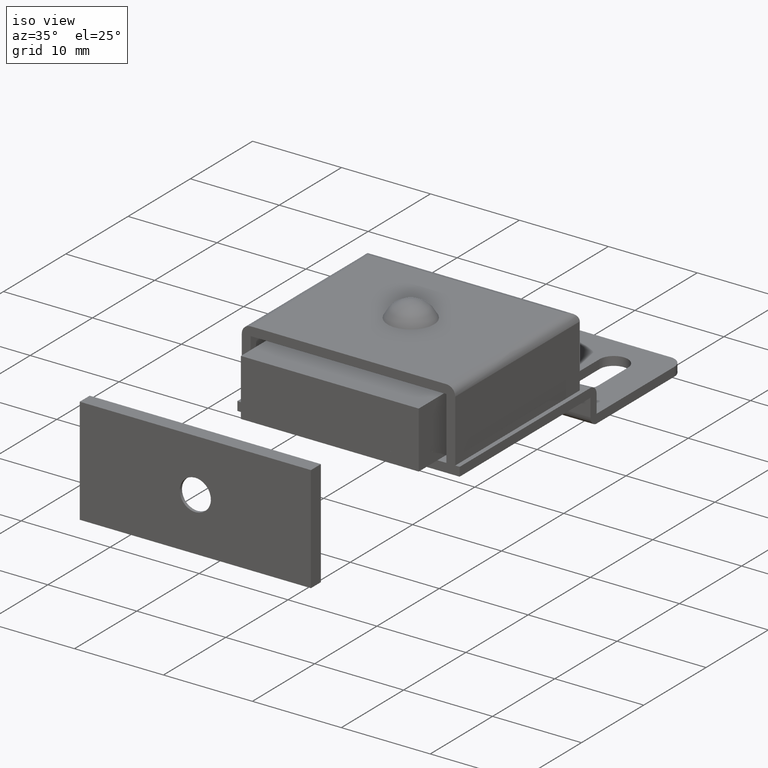
[diagram: clean part render]
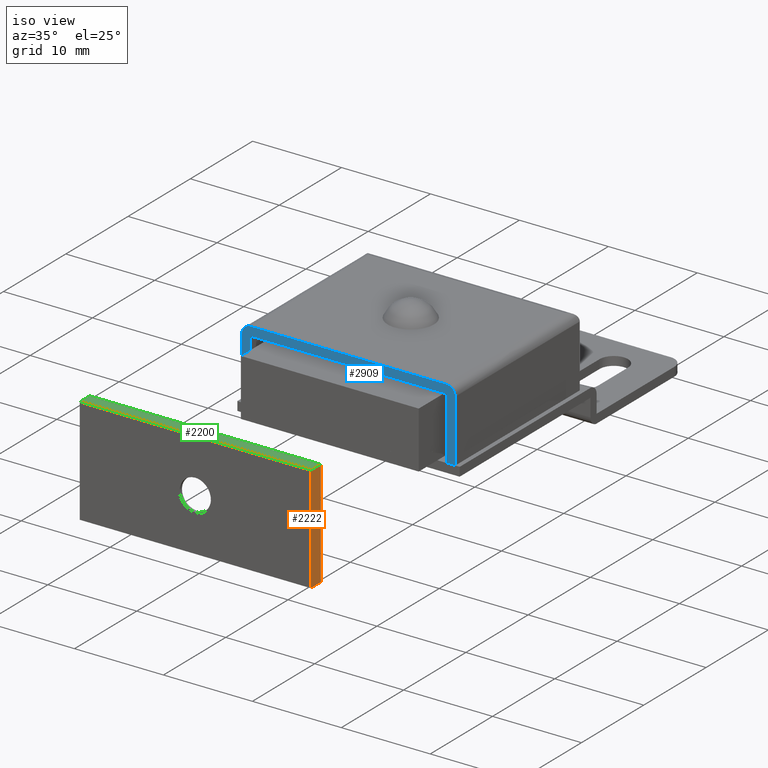
[diagram: same view with three faces highlighted in distinct colors, each labeled with its STEP entity id]
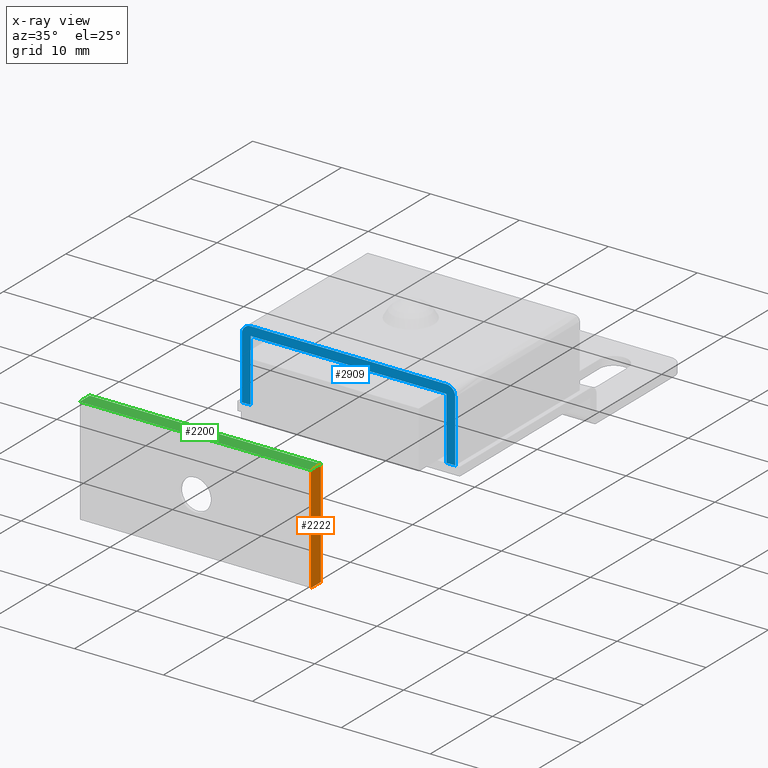
[diagram: x-ray of the same camera — body ghosted, the three highlighted faces saturated]
A machine part, iso view with three faces highlighted in distinct colors.
The next image is the same camera in x-ray (body ghosted, the three faces saturated) — at least one of them is partly hidden behind the body in this view.
Their STEP definitions:

[orange] entity #2222 — the highlighted face is a freeform B-spline surface patch.
#2145=CARTESIAN_POINT('',(13.0,-59.0,13.199997000000000));
#2146=VERTEX_POINT('',#2145);
#2152=CARTESIAN_POINT('',(13.0,-59.0,1.199996999999910));
#2153=VERTEX_POINT('',#2152);
#2154=CARTESIAN_POINT('',(13.0,-59.0,1.199996999999910));
#2155=CARTESIAN_POINT('',(13.0,-59.0,13.199997000000000));
#2156=QUASI_UNIFORM_CURVE('',1,(#2154,#2155),.UNSPECIFIED.,.F.,.U.);
#2157=EDGE_CURVE('',#2153,#2146,#2156,.T.);
#2186=CARTESIAN_POINT('',(13.0,-60.600005999999887,13.199997000000000));
#2187=VERTEX_POINT('',#2186);
#2193=CARTESIAN_POINT('',(13.0,-60.600005999999887,13.199997000000000));
#2194=CARTESIAN_POINT('',(13.0,-59.0,13.199997000000000));
#2195=QUASI_UNIFORM_CURVE('',1,(#2193,#2194),.UNSPECIFIED.,.F.,.U.);
#2196=EDGE_CURVE('',#2187,#2146,#2195,.T.);
#2201=CARTESIAN_POINT('',(13.0,-60.679926296598772,0.600597023258235));
#2202=CARTESIAN_POINT('',(13.0,-60.679926296598772,13.799397298606760));
#2203=CARTESIAN_POINT('',(13.0,-58.920079660485619,0.600597023258235));
#2204=CARTESIAN_POINT('',(13.0,-58.920079660485619,13.799397298606760));
#2205=B_SPLINE_SURFACE_WITH_KNOTS('',1,1,((#2201,#2203),(#2202,#2204)),.UNSPECIFIED.,.F.,.F.,.U.,(2,2),(2,2),(0.0,13.198800275348530),(0.041708334948495,0.958291687403247),.UNSPECIFIED.);
#2206=ORIENTED_EDGE('',*,*,#2157,.T.);
#2207=ORIENTED_EDGE('',*,*,#2196,.F.);
#2208=CARTESIAN_POINT('',(13.0,-60.600005999999887,1.199996999999910));
#2209=VERTEX_POINT('',#2208);
#2210=CARTESIAN_POINT('',(13.0,-60.600005999999887,1.199996999999910));
#2211=CARTESIAN_POINT('',(13.0,-60.600005999999887,13.199997000000000));
#2212=QUASI_UNIFORM_CURVE('',1,(#2210,#2211),.UNSPECIFIED.,.F.,.U.);
#2213=EDGE_CURVE('',#2209,#2187,#2212,.T.);
#2214=ORIENTED_EDGE('',*,*,#2213,.F.);
#2215=CARTESIAN_POINT('',(13.0,-60.600005999999887,1.199996999999910));
#2216=CARTESIAN_POINT('',(13.0,-59.0,1.199996999999910));
#2217=QUASI_UNIFORM_CURVE('',1,(#2215,#2216),.UNSPECIFIED.,.F.,.U.);
#2218=EDGE_CURVE('',#2209,#2153,#2217,.T.);
#2219=ORIENTED_EDGE('',*,*,#2218,.T.);
#2220=EDGE_LOOP('',(#2206,#2207,#2214,#2219));
#2221=FACE_OUTER_BOUND('',#2220,.T.);
#2222=ADVANCED_FACE('',(#2221),#2205,.F.);

[blue] entity #2909 — the highlighted face is a freeform B-spline surface patch.
#2442=CARTESIAN_POINT('',(11.0,-36.0,4.0));
#2443=VERTEX_POINT('',#2442);
#2450=CARTESIAN_POINT('',(12.0,-36.0,4.0));
#2451=VERTEX_POINT('',#2450);
#2457=CARTESIAN_POINT('',(12.0,-36.0,4.0));
#2458=CARTESIAN_POINT('',(11.0,-36.0,4.0));
#2459=QUASI_UNIFORM_CURVE('',1,(#2457,#2458),.UNSPECIFIED.,.F.,.U.);
#2460=EDGE_CURVE('',#2451,#2443,#2459,.T.);
#2676=CARTESIAN_POINT('',(-11.000001999999940,-36.0,12.0));
#2677=VERTEX_POINT('',#2676);
#2678=CARTESIAN_POINT('',(-12.000002000000000,-36.0,11.0));
#2679=VERTEX_POINT('',#2678);
#2680=CARTESIAN_POINT('',(-11.000001999999940,-36.0,12.0));
#2681=CARTESIAN_POINT('',(-11.081814594807661,-35.999999999999993,12.000020408934610));
#2682=CARTESIAN_POINT('',(-11.220884380248281,-36.000000000000007,11.982831857641290));
#2683=CARTESIAN_POINT('',(-11.415008119807830,-36.000000000000007,11.916051346837850));
#2684=CARTESIAN_POINT('',(-11.572368746560389,-35.999999999999972,11.826905169898611));
#2685=CARTESIAN_POINT('',(-11.716878913881059,-36.000000000000099,11.705309614131130));
#2686=CARTESIAN_POINT('',(-11.847273958373471,-35.999999999999957,11.546450259949500));
#2687=CARTESIAN_POINT('',(-11.965875624697500,-36.000000000000021,11.310839768075679));
#2688=CARTESIAN_POINT('',(-12.000089556016420,-36.000000000000007,11.114548889117071));
#2689=CARTESIAN_POINT('',(-12.000002000000000,-36.0,11.0));
#2690=B_SPLINE_CURVE_WITH_KNOTS('',3,(#2680,#2681,#2682,#2683,#2684,#2685,#2686,#2687,#2688,#2689),.UNSPECIFIED.,.F.,.U.,(4,1,1,1,1,1,1,4),(0.000000014778806,0.245437640393745,0.417254423383799,0.613609555557580,0.785417879556717,0.981767531972485,1.227217482293383,1.570835744334741),.UNSPECIFIED.);
#2691=EDGE_CURVE('',#2677,#2679,#2690,.T.);
#2721=CARTESIAN_POINT('',(12.0,-36.0,11.0));
#2722=VERTEX_POINT('',#2721);
#2723=CARTESIAN_POINT('',(11.0,-36.0,12.0));
#2724=VERTEX_POINT('',#2723);
#2725=CARTESIAN_POINT('',(12.0,-36.0,11.0));
#2726=CARTESIAN_POINT('',(12.0,-36.0,12.0));
#2727=CARTESIAN_POINT('',(11.0,-36.0,12.0));
#2735=(BOUNDED_CURVE()B_SPLINE_CURVE(2,(#2725,#2726,#2727),.UNSPECIFIED.,.F.,.U.)CURVE()GEOMETRIC_REPRESENTATION_ITEM()QUASI_UNIFORM_CURVE()RATIONAL_B_SPLINE_CURVE((1.0,0.707106781186548,1.0))REPRESENTATION_ITEM(''));
#2736=EDGE_CURVE('',#2722,#2724,#2735,.T.);
#2757=CARTESIAN_POINT('',(11.0,-36.0,11.0));
#2758=VERTEX_POINT('',#2757);
#2759=CARTESIAN_POINT('',(11.0,-36.0,11.0));
#2760=CARTESIAN_POINT('',(11.0,-36.0,4.0));
#2761=QUASI_UNIFORM_CURVE('',1,(#2759,#2760),.UNSPECIFIED.,.F.,.U.);
#2762=EDGE_CURVE('',#2758,#2443,#2761,.T.);
#2779=CARTESIAN_POINT('',(-11.000002000000000,-36.0,11.0));
#2780=VERTEX_POINT('',#2779);
#2781=CARTESIAN_POINT('',(-11.000002000000000,-36.0,11.0));
#2782=CARTESIAN_POINT('',(11.0,-36.0,11.0));
#2783=QUASI_UNIFORM_CURVE('',1,(#2781,#2782),.UNSPECIFIED.,.F.,.U.);
#2784=EDGE_CURVE('',#2780,#2758,#2783,.T.);
#2805=CARTESIAN_POINT('',(-11.000002000000000,-36.0,4.0));
#2806=VERTEX_POINT('',#2805);
#2807=CARTESIAN_POINT('',(-11.000002000000000,-36.0,4.0));
#2808=CARTESIAN_POINT('',(-11.000002000000000,-36.0,11.0));
#2809=QUASI_UNIFORM_CURVE('',1,(#2807,#2808),.UNSPECIFIED.,.F.,.U.);
#2810=EDGE_CURVE('',#2806,#2780,#2809,.T.);
#2833=CARTESIAN_POINT('',(-12.000001999999959,-36.0,4.0));
#2834=VERTEX_POINT('',#2833);
#2835=CARTESIAN_POINT('',(-12.000001999999959,-36.0,4.0));
#2836=CARTESIAN_POINT('',(-12.000002000000000,-36.0,11.0));
#2837=QUASI_UNIFORM_CURVE('',1,(#2835,#2836),.UNSPECIFIED.,.F.,.U.);
#2838=EDGE_CURVE('',#2834,#2679,#2837,.T.);
#2863=CARTESIAN_POINT('',(12.0,-36.0,4.0));
#2864=CARTESIAN_POINT('',(12.0,-36.0,11.0));
#2865=QUASI_UNIFORM_CURVE('',1,(#2863,#2864),.UNSPECIFIED.,.F.,.U.);
#2866=EDGE_CURVE('',#2451,#2722,#2865,.T.);
#2877=CARTESIAN_POINT('',(11.0,-36.0,12.0));
#2878=CARTESIAN_POINT('',(-11.000001999999940,-36.0,12.0));
#2879=QUASI_UNIFORM_CURVE('',1,(#2877,#2878),.UNSPECIFIED.,.F.,.U.);
#2880=EDGE_CURVE('',#2724,#2677,#2879,.T.);
#2888=CARTESIAN_POINT('',(-13.198802053383339,-36.0,12.399599984494451));
#2889=CARTESIAN_POINT('',(-13.198802053383339,-36.0,3.600399800928832));
#2890=CARTESIAN_POINT('',(13.198800697113560,-36.0,12.399599984494451));
#2891=CARTESIAN_POINT('',(13.198800697113560,-36.0,3.600399800928832));
#2892=B_SPLINE_SURFACE_WITH_KNOTS('',1,1,((#2888,#2890),(#2889,#2891)),.UNSPECIFIED.,.F.,.F.,.U.,(2,2),(2,2),(0.0,8.799200183565615),(0.0,26.397602750496890),.UNSPECIFIED.);
#2893=ORIENTED_EDGE('',*,*,#2866,.T.);
#2894=ORIENTED_EDGE('',*,*,#2736,.T.);
#2895=ORIENTED_EDGE('',*,*,#2880,.T.);
#2896=ORIENTED_EDGE('',*,*,#2691,.T.);
#2897=ORIENTED_EDGE('',*,*,#2838,.F.);
#2898=CARTESIAN_POINT('',(-11.000002000000000,-36.0,4.0));
#2899=CARTESIAN_POINT('',(-12.000001999999959,-36.0,4.0));
#2900=QUASI_UNIFORM_CURVE('',1,(#2898,#2899),.UNSPECIFIED.,.F.,.U.);
#2901=EDGE_CURVE('',#2806,#2834,#2900,.T.);
#2902=ORIENTED_EDGE('',*,*,#2901,.F.);
#2903=ORIENTED_EDGE('',*,*,#2810,.T.);
#2904=ORIENTED_EDGE('',*,*,#2784,.T.);
#2905=ORIENTED_EDGE('',*,*,#2762,.T.);
#2906=ORIENTED_EDGE('',*,*,#2460,.F.);
#2907=EDGE_LOOP('',(#2893,#2894,#2895,#2896,#2897,#2902,#2903,#2904,#2905,#2906));
#2908=FACE_OUTER_BOUND('',#2907,.T.);
#2909=ADVANCED_FACE('',(#2908),#2892,.T.);

[green] entity #2200 — the highlighted face is a freeform B-spline surface patch.
#2136=CARTESIAN_POINT('',(-13.0,-59.0,13.199997000000000));
#2137=VERTEX_POINT('',#2136);
#2145=CARTESIAN_POINT('',(13.0,-59.0,13.199997000000000));
#2146=VERTEX_POINT('',#2145);
#2147=CARTESIAN_POINT('',(13.0,-59.0,13.199997000000000));
#2148=CARTESIAN_POINT('',(-13.0,-59.0,13.199997000000000));
#2149=QUASI_UNIFORM_CURVE('',1,(#2147,#2148),.UNSPECIFIED.,.F.,.U.);
#2150=EDGE_CURVE('',#2146,#2137,#2149,.T.);
#2173=CARTESIAN_POINT('',(14.298699949606959,-60.679926296598772,13.199997000000000));
#2174=CARTESIAN_POINT('',(-14.298700646981301,-60.679926296598772,13.199997000000000));
#2175=CARTESIAN_POINT('',(14.298699949606959,-58.920079660485619,13.199997000000000));
#2176=CARTESIAN_POINT('',(-14.298700646981301,-58.920079660485619,13.199997000000000));
#2177=B_SPLINE_SURFACE_WITH_KNOTS('',1,1,((#2173,#2175),(#2174,#2176)),.UNSPECIFIED.,.F.,.F.,.U.,(2,2),(2,2),(0.0,28.597400596588258),(0.041708334948495,0.958291687403247),.UNSPECIFIED.);
#2178=ORIENTED_EDGE('',*,*,#2150,.T.);
#2179=CARTESIAN_POINT('',(-13.0,-60.600005999999887,13.199997000000000));
#2180=VERTEX_POINT('',#2179);
#2181=CARTESIAN_POINT('',(-13.0,-60.600005999999887,13.199997000000000));
#2182=CARTESIAN_POINT('',(-13.0,-59.0,13.199997000000000));
#2183=QUASI_UNIFORM_CURVE('',1,(#2181,#2182),.UNSPECIFIED.,.F.,.U.);
#2184=EDGE_CURVE('',#2180,#2137,#2183,.T.);
#2185=ORIENTED_EDGE('',*,*,#2184,.F.);
#2186=CARTESIAN_POINT('',(13.0,-60.600005999999887,13.199997000000000));
#2187=VERTEX_POINT('',#2186);
#2188=CARTESIAN_POINT('',(13.0,-60.600005999999887,13.199997000000000));
#2189=CARTESIAN_POINT('',(-13.0,-60.600005999999887,13.199997000000000));
#2190=QUASI_UNIFORM_CURVE('',1,(#2188,#2189),.UNSPECIFIED.,.F.,.U.);
#2191=EDGE_CURVE('',#2187,#2180,#2190,.T.);
#2192=ORIENTED_EDGE('',*,*,#2191,.F.);
#2193=CARTESIAN_POINT('',(13.0,-60.600005999999887,13.199997000000000));
#2194=CARTESIAN_POINT('',(13.0,-59.0,13.199997000000000));
#2195=QUASI_UNIFORM_CURVE('',1,(#2193,#2194),.UNSPECIFIED.,.F.,.U.);
#2196=EDGE_CURVE('',#2187,#2146,#2195,.T.);
#2197=ORIENTED_EDGE('',*,*,#2196,.T.);
#2198=EDGE_LOOP('',(#2178,#2185,#2192,#2197));
#2199=FACE_OUTER_BOUND('',#2198,.T.);
#2200=ADVANCED_FACE('',(#2199),#2177,.F.);